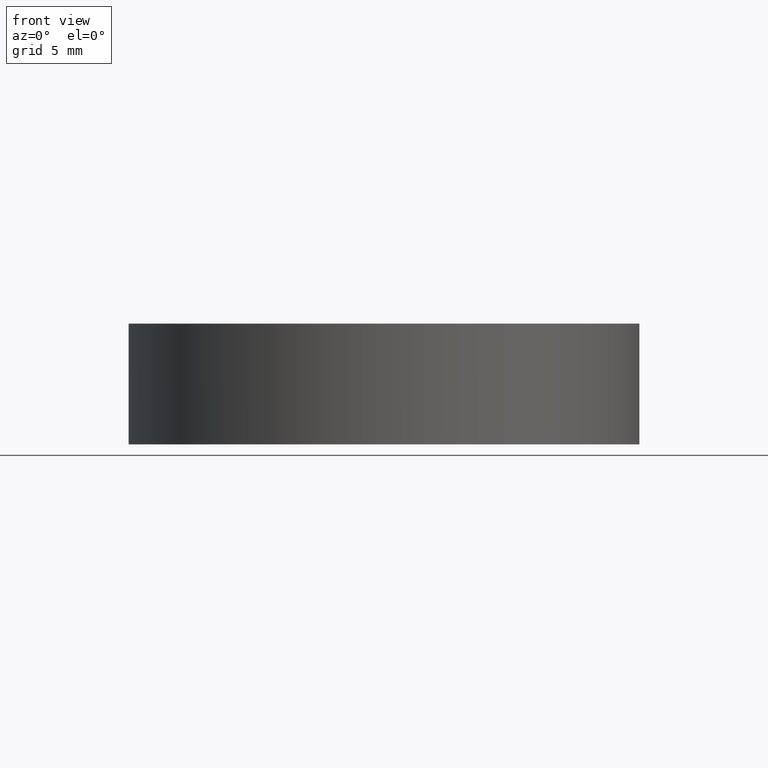
[diagram: clean part render]
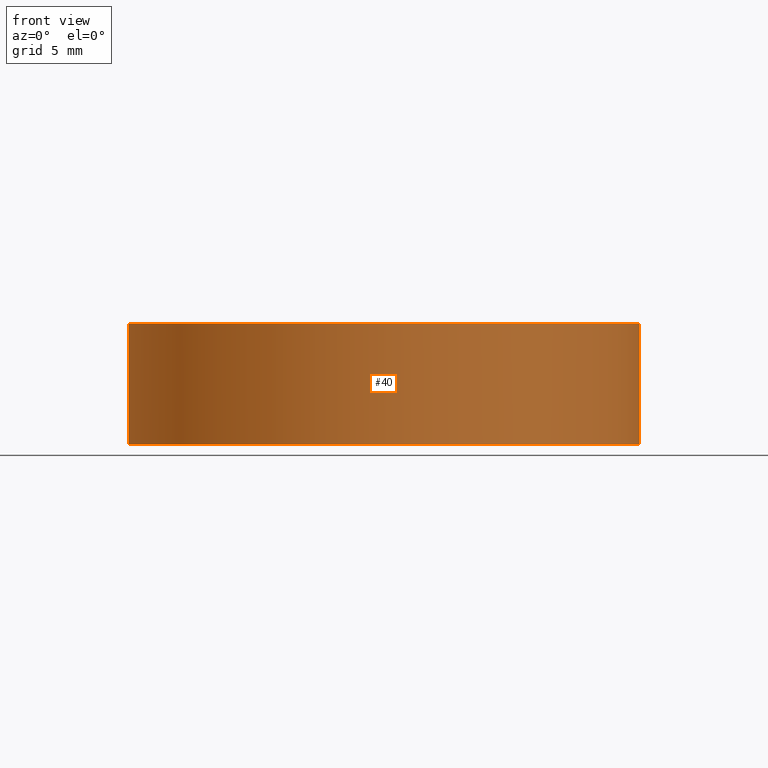
[diagram: same view with one face highlighted and labeled with its STEP entity id]
A machine part, front view. The second image highlights one B-rep face of the part: STEP entity #40.
In plain terms, the highlighted cylindrical surface (partial cylindrical patch) has radius 12.7 mm, axis along (-0, -0, -1).
Its self-contained STEP definition (entity closure, byte-faithful):
#1 = ORIENTED_EDGE ( 'NONE', *, *, #110, .F. ) ;
#2 = AXIS2_PLACEMENT_3D ( 'NONE', #51, #128, #179 ) ;
#27 = VERTEX_POINT ( 'NONE', #32 ) ;
#32 = CARTESIAN_POINT ( 'NONE',  ( 12.70000000000007923, 1.555301434917148096E-15, 6.000000000000005329 ) ) ;
#34 = EDGE_LOOP ( 'NONE', ( #1, #108, #140, #65 ) ) ;
#40 = ADVANCED_FACE ( 'NONE', ( #68 ), #48, .T. ) ;
#44 = VERTEX_POINT ( 'NONE', #159 ) ;
#48 = CYLINDRICAL_SURFACE ( 'NONE', #132, 12.69999999999999929 ) ;
#50 = CIRCLE ( 'NONE', #195, 12.69999999999999929 ) ;
#51 = CARTESIAN_POINT ( 'NONE',  ( 2.081668171172168513E-14, 0.000000000000000000, 6.000000000000005329 ) ) ;
#61 = CARTESIAN_POINT ( 'NONE',  ( -12.69999999999999929, 0.000000000000000000, 6.000000000000000000 ) ) ;
#65 = ORIENTED_EDGE ( 'NONE', *, *, #114, .T. ) ;
#67 = CIRCLE ( 'NONE', #2, 12.70000000000005613 ) ;
#68 = FACE_OUTER_BOUND ( 'NONE', #34, .T. ) ;
#71 = CARTESIAN_POINT ( 'NONE',  ( -12.69999999999999929, 0.000000000000000000, 0.000000000000000000 ) ) ;
#78 = DIRECTION ( 'NONE',  ( -0.000000000000000000, -0.000000000000000000, -1.000000000000000000 ) ) ;
#89 = CARTESIAN_POINT ( 'NONE',  ( 0.000000000000000000, 0.000000000000000000, 0.000000000000000000 ) ) ;
#90 = LINE ( 'NONE', #61, #107 ) ;
#97 = EDGE_CURVE ( 'NONE', #104, #158, #90, .T. ) ;
#104 = VERTEX_POINT ( 'NONE', #186 ) ;
#105 = LINE ( 'NONE', #198, #178 ) ;
#107 = VECTOR ( 'NONE', #78, 1000.000000000000000 ) ;
#108 = ORIENTED_EDGE ( 'NONE', *, *, #171, .T. ) ;
#109 = DIRECTION ( 'NONE',  ( -1.000000000000000000, 0.000000000000000000, 0.000000000000000000 ) ) ;
#110 = EDGE_CURVE ( 'NONE', #27, #44, #105, .T. ) ;
#114 = EDGE_CURVE ( 'NONE', #158, #44, #50, .T. ) ;
#120 = DIRECTION ( 'NONE',  ( 1.000000000000000000, 0.000000000000000000, 0.000000000000000000 ) ) ;
#128 = DIRECTION ( 'NONE',  ( -0.000000000000000000, -0.000000000000000000, -1.000000000000000000 ) ) ;
#132 = AXIS2_PLACEMENT_3D ( 'NONE', #137, #168, #109 ) ;
#133 = DIRECTION ( 'NONE',  ( -0.000000000000000000, -0.000000000000000000, -1.000000000000000000 ) ) ;
#137 = CARTESIAN_POINT ( 'NONE',  ( 0.000000000000000000, 0.000000000000000000, 6.000000000000000000 ) ) ;
#140 = ORIENTED_EDGE ( 'NONE', *, *, #97, .T. ) ;
#158 = VERTEX_POINT ( 'NONE', #71 ) ;
#159 = CARTESIAN_POINT ( 'NONE',  ( 12.69999999999999929, 1.555301434917138433E-15, 0.000000000000000000 ) ) ;
#168 = DIRECTION ( 'NONE',  ( -0.000000000000000000, -0.000000000000000000, -1.000000000000000000 ) ) ;
#171 = EDGE_CURVE ( 'NONE', #27, #104, #67, .T. ) ;
#178 = VECTOR ( 'NONE', #133, 1000.000000000000000 ) ;
#179 = DIRECTION ( 'NONE',  ( 1.000000000000000000, 0.000000000000000000, 0.000000000000000000 ) ) ;
#186 = CARTESIAN_POINT ( 'NONE',  ( -12.70000000000003659, 0.000000000000000000, 6.000000000000005329 ) ) ;
#195 = AXIS2_PLACEMENT_3D ( 'NONE', #89, #200, #120 ) ;
#198 = CARTESIAN_POINT ( 'NONE',  ( 12.69999999999999929, 1.555301434917138433E-15, 6.000000000000000000 ) ) ;
#200 = DIRECTION ( 'NONE',  ( 0.000000000000000000, 0.000000000000000000, 1.000000000000000000 ) ) ;